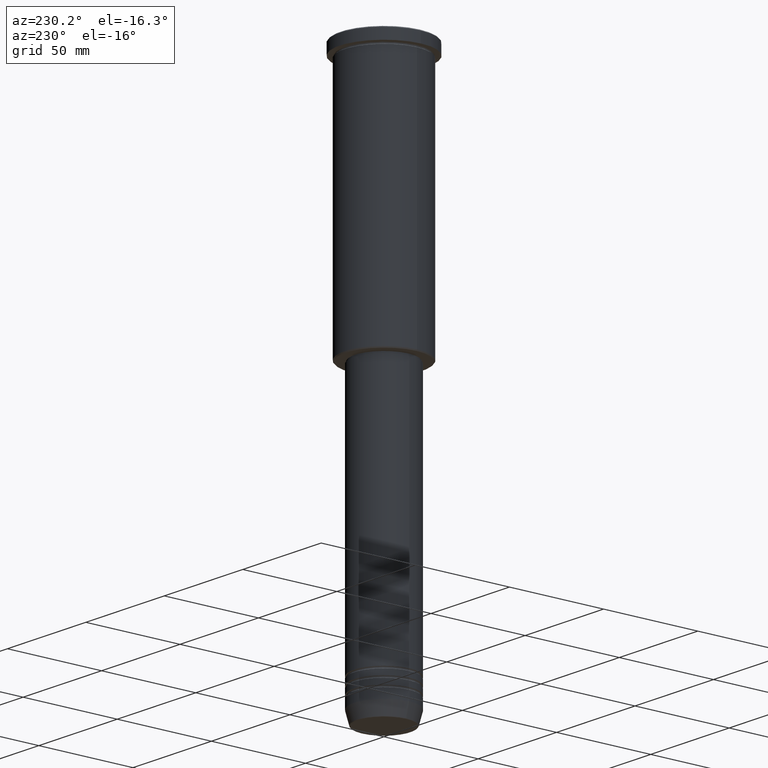
[diagram: clean part render]
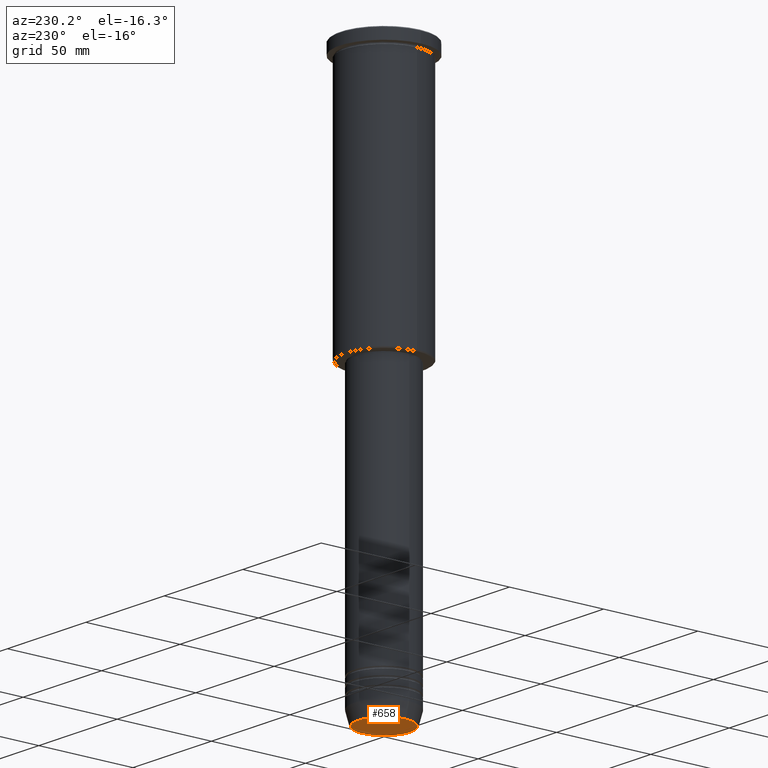
[diagram: same view with one face highlighted and labeled with its STEP entity id]
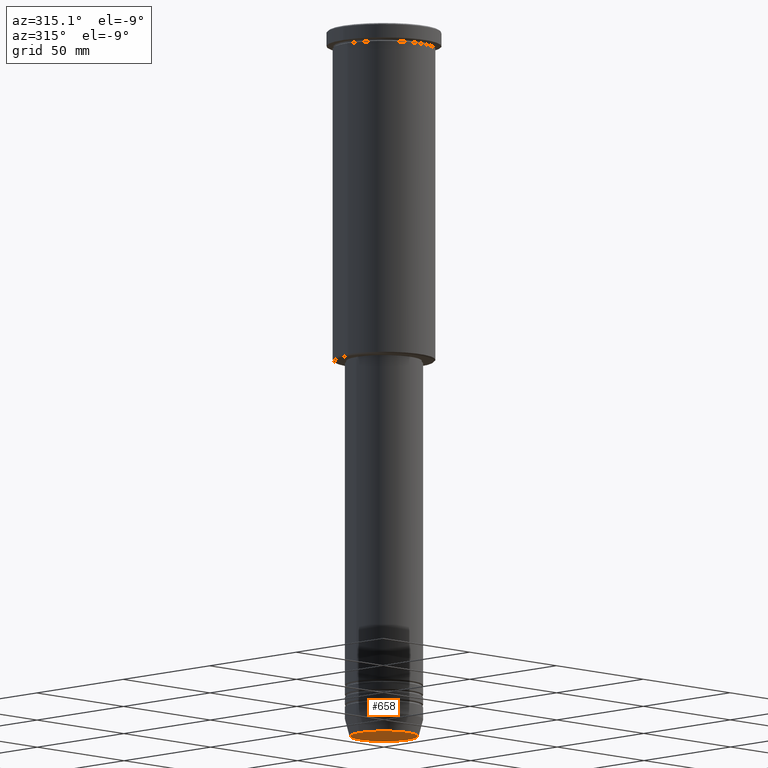
[diagram: same view with one face highlighted and labeled with its STEP entity id]
A machine part, auxiliary view. The second image highlights one B-rep face of the part: STEP entity #658.
A second angle (auxiliary view) of the same face is appended — the face is thin or edge-on in the first view.
In plain terms, the highlighted planar face has unit normal (0, -0, 1).
Its self-contained STEP definition (entity closure, byte-faithful):
#8 = AXIS2_PLACEMENT_3D ( 'NONE', #393, #875, #782 ) ;
#112 = EDGE_LOOP ( 'NONE', ( #607, #1015 ) ) ;
#172 = CARTESIAN_POINT ( 'NONE',  ( -13.74069215899265828, 1.712322416342415986E-15, -291.0000000000000568 ) ) ;
#184 = EDGE_CURVE ( 'NONE', #863, #1137, #876, .T. ) ;
#217 = DIRECTION ( 'NONE',  ( 1.000000000000000000, 0.000000000000000000, 0.000000000000000000 ) ) ;
#343 = AXIS2_PLACEMENT_3D ( 'NONE', #729, #1038, #217 ) ;
#393 = CARTESIAN_POINT ( 'NONE',  ( 0.000000000000000000, 0.000000000000000000, -291.0000000000000568 ) ) ;
#607 = ORIENTED_EDGE ( 'NONE', *, *, #1173, .T. ) ;
#612 = DIRECTION ( 'NONE',  ( 1.000000000000000000, 0.000000000000000000, 0.000000000000000000 ) ) ;
#658 = ADVANCED_FACE ( 'NONE', ( #1061 ), #865, .F. ) ;
#729 = CARTESIAN_POINT ( 'NONE',  ( 0.000000000000000000, 0.000000000000000000, -291.0000000000000568 ) ) ;
#770 = DIRECTION ( 'NONE',  ( 0.000000000000000000, -0.000000000000000000, 1.000000000000000000 ) ) ;
#782 = DIRECTION ( 'NONE',  ( 1.000000000000000000, 0.000000000000000000, 0.000000000000000000 ) ) ;
#807 = CARTESIAN_POINT ( 'NONE',  ( 13.74069215899265828, 0.000000000000000000, -291.0000000000000568 ) ) ;
#863 = VERTEX_POINT ( 'NONE', #172 ) ;
#865 = PLANE ( 'NONE',  #930 ) ;
#875 = DIRECTION ( 'NONE',  ( 0.000000000000000000, 0.000000000000000000, -1.000000000000000000 ) ) ;
#876 = CIRCLE ( 'NONE', #8, 13.74069215899265828 ) ;
#930 = AXIS2_PLACEMENT_3D ( 'NONE', #1157, #770, #612 ) ;
#1015 = ORIENTED_EDGE ( 'NONE', *, *, #184, .T. ) ;
#1038 = DIRECTION ( 'NONE',  ( 0.000000000000000000, 0.000000000000000000, -1.000000000000000000 ) ) ;
#1061 = FACE_OUTER_BOUND ( 'NONE', #112, .T. ) ;
#1091 = CIRCLE ( 'NONE', #343, 13.74069215899265828 ) ;
#1137 = VERTEX_POINT ( 'NONE', #807 ) ;
#1157 = CARTESIAN_POINT ( 'NONE',  ( 0.000000000000000000, 0.000000000000000000, -291.0000000000000568 ) ) ;
#1173 = EDGE_CURVE ( 'NONE', #1137, #863, #1091, .T. ) ;